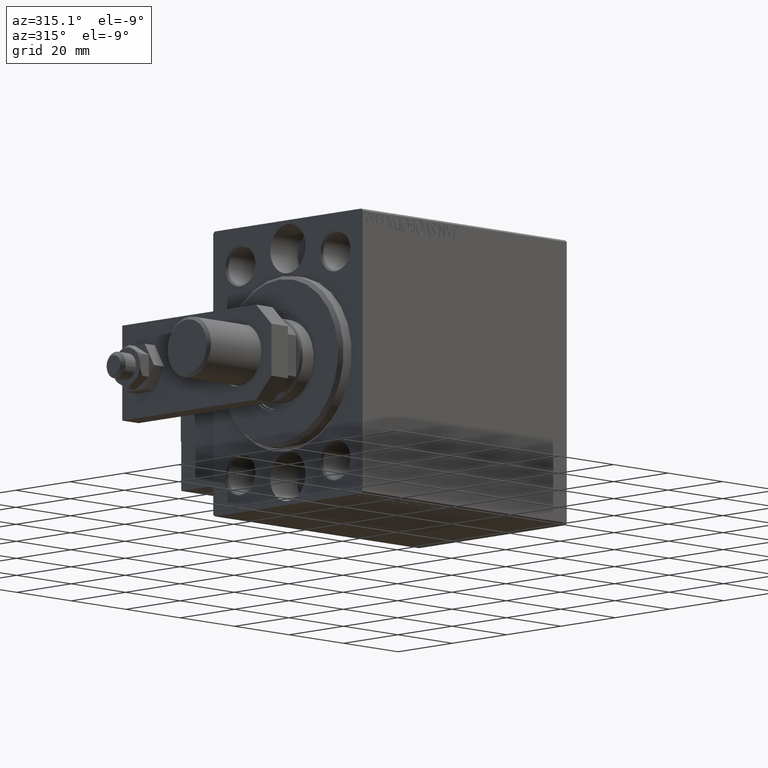
[diagram: clean part render]
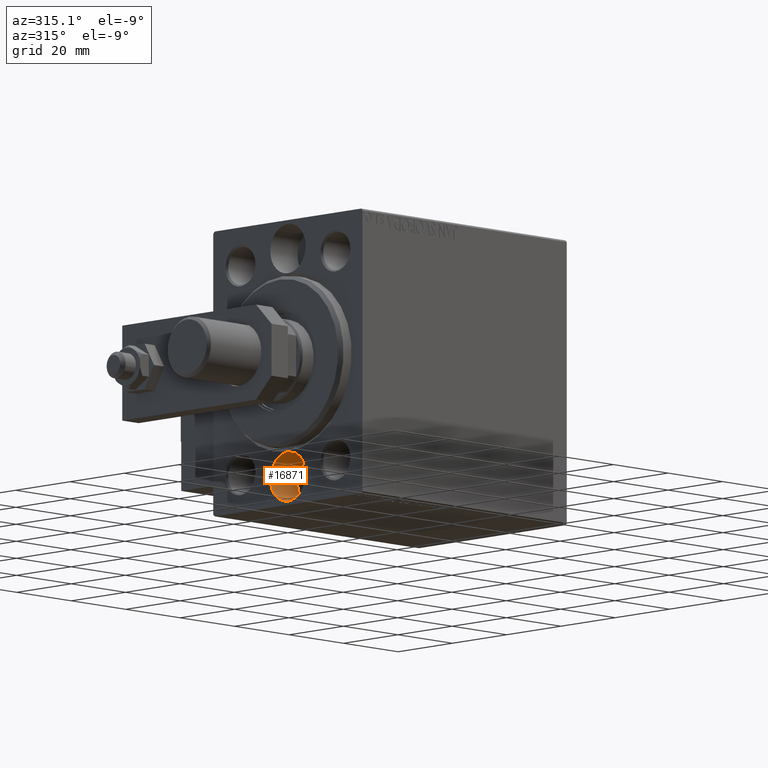
[diagram: same view with one face highlighted and labeled with its STEP entity id]
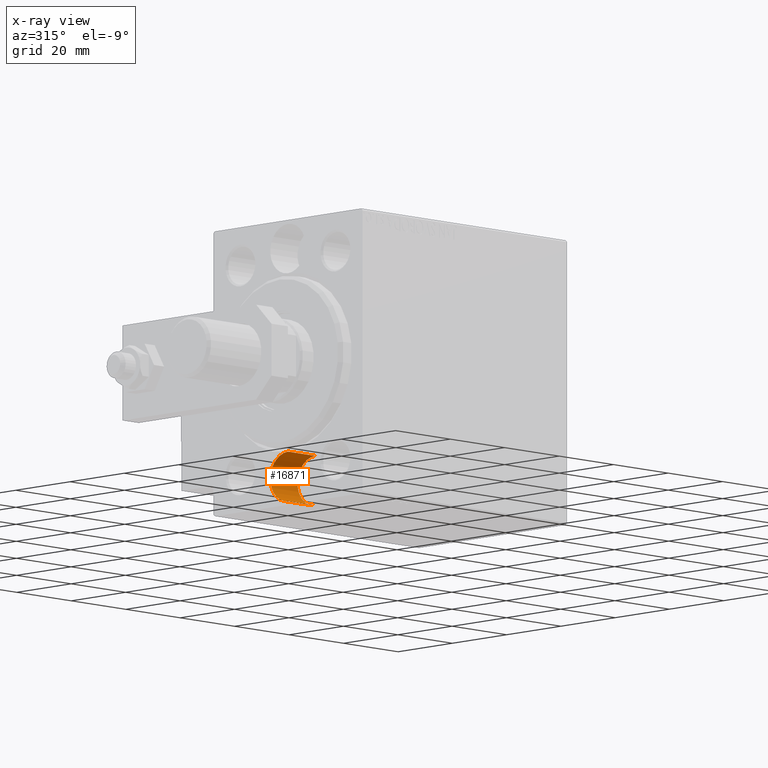
[diagram: x-ray of the same camera — body ghosted, the highlighted face saturated]
A machine part, auxiliary view. The second image highlights one B-rep face of the part: STEP entity #16871.
The next image is the same camera in x-ray: the body ghosted, the highlighted face saturated — about 0% of this face is hidden behind the body in this view.
In plain terms, the highlighted cylindrical surface (edge-blend (fillet) strip) has radius 6.5 mm, axis along (-1, -0, -0).
Its self-contained STEP definition (entity closure, byte-faithful):
#1262 = CARTESIAN_POINT ( 'NONE',  ( 0.000000000000000000, 0.000000000000000000, -30.00000000000000000 ) ) ;
#2064 = EDGE_CURVE ( 'NONE', #20832, #29764, #51478, .T. ) ;
#2845 = DIRECTION ( 'NONE',  ( -1.000000000000000000, 0.000000000000000000, 0.000000000000000000 ) ) ;
#3934 = VECTOR ( 'NONE', #43402, 1000.000000000000000 ) ;
#8064 = DIRECTION ( 'NONE',  ( -1.000000000000000000, -0.000000000000000000, -0.000000000000000000 ) ) ;
#8570 = ORIENTED_EDGE ( 'NONE', *, *, #29010, .T. ) ;
#9408 = FACE_OUTER_BOUND ( 'NONE', #12960, .T. ) ;
#9957 = CARTESIAN_POINT ( 'NONE',  ( 0.000000000000000000, 7.960204194457798435E-16, -36.50000000000000000 ) ) ;
#10699 = ORIENTED_EDGE ( 'NONE', *, *, #2064, .T. ) ;
#11096 = CARTESIAN_POINT ( 'NONE',  ( 10.00000000000000000, 0.000000000000000000, -23.50000000000000000 ) ) ;
#12408 = CIRCLE ( 'NONE', #41538, 6.499999999999999112 ) ;
#12960 = EDGE_LOOP ( 'NONE', ( #21929, #48194, #10699, #8570 ) ) ;
#13051 = CARTESIAN_POINT ( 'NONE',  ( 10.00000000000000000, 0.000000000000000000, -30.00000000000000000 ) ) ;
#14965 = CARTESIAN_POINT ( 'NONE',  ( 10.00000000000000000, 0.000000000000000000, -23.50000000000000000 ) ) ;
#16141 = CARTESIAN_POINT ( 'NONE',  ( 10.00000000000000000, 7.960204194457798435E-16, -36.50000000000000000 ) ) ;
#16341 = EDGE_CURVE ( 'NONE', #19341, #32098, #32046, .T. ) ;
#16871 = ADVANCED_FACE ( 'NONE', ( #9408 ), #25313, .F. ) ;
#17066 = VECTOR ( 'NONE', #8064, 1000.000000000000000 ) ;
#17073 = CIRCLE ( 'NONE', #22936, 6.499999999999999112 ) ;
#18476 = CARTESIAN_POINT ( 'NONE',  ( 10.00000000000000000, 0.000000000000000000, -30.00000000000000000 ) ) ;
#19341 = VERTEX_POINT ( 'NONE', #16141 ) ;
#20829 = CARTESIAN_POINT ( 'NONE',  ( 10.00000000000000000, 7.960204194457796463E-16, -36.50000000000000000 ) ) ;
#20832 = VERTEX_POINT ( 'NONE', #14965 ) ;
#21929 = ORIENTED_EDGE ( 'NONE', *, *, #16341, .F. ) ;
#22103 = AXIS2_PLACEMENT_3D ( 'NONE', #13051, #37312, #32112 ) ;
#22936 = AXIS2_PLACEMENT_3D ( 'NONE', #18476, #2845, #46869 ) ;
#25313 = CYLINDRICAL_SURFACE ( 'NONE', #22103, 6.499999999999999112 ) ;
#29010 = EDGE_CURVE ( 'NONE', #29764, #32098, #12408, .T. ) ;
#29764 = VERTEX_POINT ( 'NONE', #47672 ) ;
#32046 = LINE ( 'NONE', #20829, #17066 ) ;
#32098 = VERTEX_POINT ( 'NONE', #9957 ) ;
#32112 = DIRECTION ( 'NONE',  ( 0.000000000000000000, 0.000000000000000000, 1.000000000000000000 ) ) ;
#32301 = DIRECTION ( 'NONE',  ( -1.000000000000000000, 0.000000000000000000, 0.000000000000000000 ) ) ;
#36458 = DIRECTION ( 'NONE',  ( 0.000000000000000000, 0.000000000000000000, 1.000000000000000000 ) ) ;
#37312 = DIRECTION ( 'NONE',  ( -1.000000000000000000, -0.000000000000000000, -0.000000000000000000 ) ) ;
#39011 = EDGE_CURVE ( 'NONE', #20832, #19341, #17073, .T. ) ;
#41538 = AXIS2_PLACEMENT_3D ( 'NONE', #1262, #32301, #36458 ) ;
#43402 = DIRECTION ( 'NONE',  ( -1.000000000000000000, -0.000000000000000000, -0.000000000000000000 ) ) ;
#46869 = DIRECTION ( 'NONE',  ( 0.000000000000000000, 0.000000000000000000, 1.000000000000000000 ) ) ;
#47672 = CARTESIAN_POINT ( 'NONE',  ( 0.000000000000000000, 0.000000000000000000, -23.50000000000000355 ) ) ;
#48194 = ORIENTED_EDGE ( 'NONE', *, *, #39011, .F. ) ;
#51478 = LINE ( 'NONE', #11096, #3934 ) ;